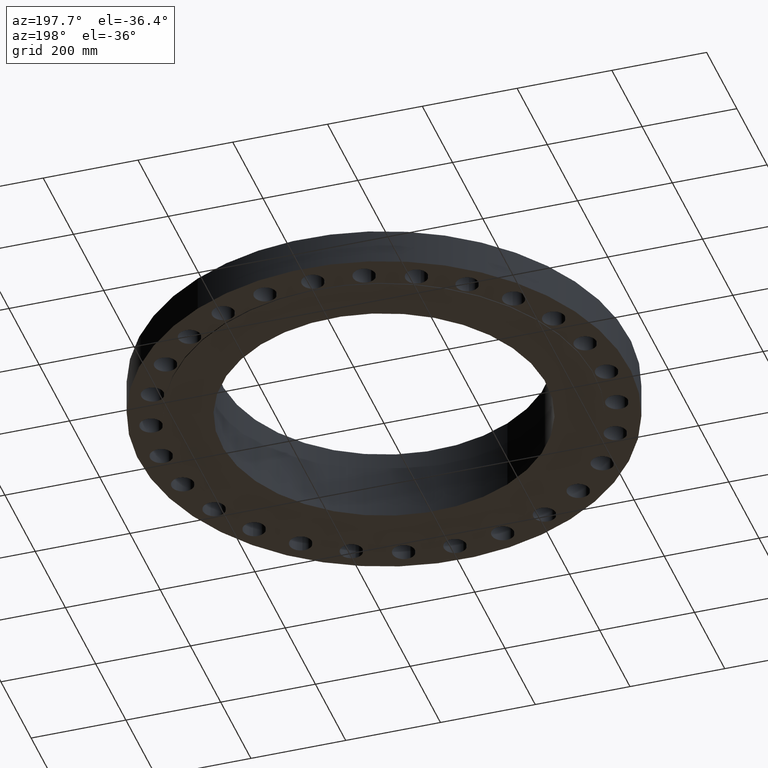
[diagram: clean part render]
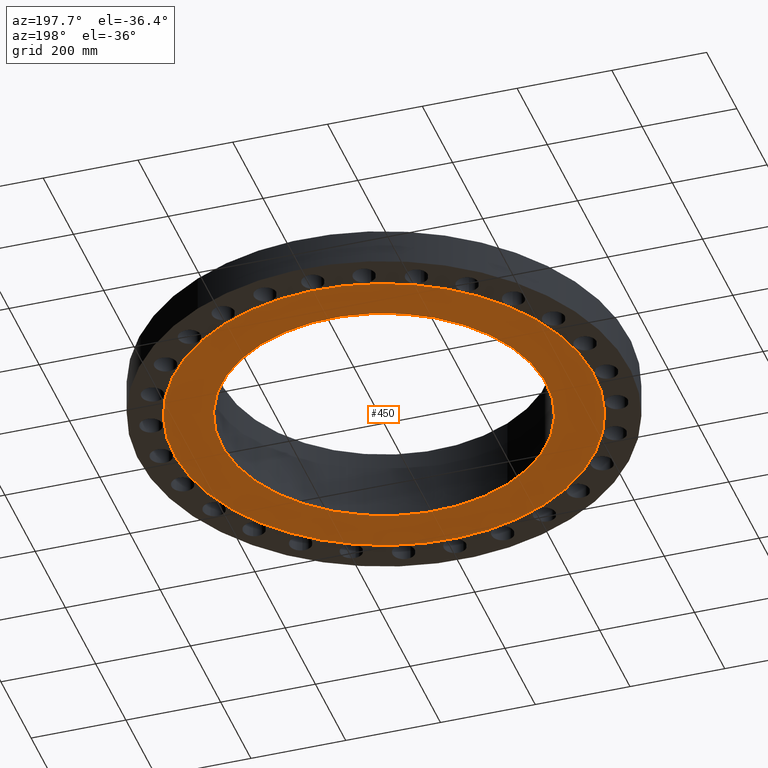
[diagram: same view with one face highlighted and labeled with its STEP entity id]
A machine part, auxiliary view. The second image highlights one B-rep face of the part: STEP entity #450.
In plain terms, the highlighted planar face has unit normal (0, 0, -1).
Its self-contained STEP definition (entity closure, byte-faithful):
#389=CARTESIAN_POINT('Vertex',(164.395017188,300.923060473,-1.58750000001)) ;
#392=CARTESIAN_POINT('Axis2P3D Location',(0.,0.,-1.58750000001)) ;
#396=CARTESIAN_POINT('Vertex',(-164.395017188,-300.923060473,-1.58750000001)) ;
#411=CARTESIAN_POINT('Axis2P3D Location',(0.,0.,-1.58750000001)) ;
#423=CARTESIAN_POINT('Axis2P3D Location',(0.,342.900000001,-1.58750000001)) ;
#428=CARTESIAN_POINT('Axis2P3D Location',(0.,0.,-1.58750000001)) ;
#432=CARTESIAN_POINT('Vertex',(-212.73932965,-389.41673085,-1.58750000001)) ;
#434=CARTESIAN_POINT('Vertex',(212.73932965,389.41673085,-1.58750000001)) ;
#437=CARTESIAN_POINT('Axis2P3D Location',(0.,0.,-1.58750000001)) ;
#393=DIRECTION('Axis2P3D Direction',(0.,0.,-1.)) ;
#412=DIRECTION('Axis2P3D Direction',(0.,0.,-1.)) ;
#424=DIRECTION('Axis2P3D Direction',(0.,0.,-1.)) ;
#425=DIRECTION('Axis2P3D XDirection',(1.,0.,0.)) ;
#429=DIRECTION('Axis2P3D Direction',(0.,0.,-1.)) ;
#438=DIRECTION('Axis2P3D Direction',(0.,0.,-1.)) ;
#394=AXIS2_PLACEMENT_3D('Circle Axis2P3D',#392,#393,$) ;
#413=AXIS2_PLACEMENT_3D('Circle Axis2P3D',#411,#412,$) ;
#426=AXIS2_PLACEMENT_3D('Plane Axis2P3D',#423,#424,#425) ;
#430=AXIS2_PLACEMENT_3D('Circle Axis2P3D',#428,#429,$) ;
#439=AXIS2_PLACEMENT_3D('Circle Axis2P3D',#437,#438,$) ;
#443=ORIENTED_EDGE('',*,*,#436,.T.) ;
#444=ORIENTED_EDGE('',*,*,#441,.T.) ;
#447=ORIENTED_EDGE('',*,*,#398,.F.) ;
#448=ORIENTED_EDGE('',*,*,#415,.F.) ;
#449=FACE_BOUND('',#446,.T.) ;
#450=ADVANCED_FACE('PartBody',(#445,#449),#427,.T.) ;
#395=CIRCLE('generated circle',#394,342.900000001) ;
#414=CIRCLE('generated circle',#413,342.900000001) ;
#431=CIRCLE('generated circle',#430,443.738000002) ;
#440=CIRCLE('generated circle',#439,443.738000002) ;
#398=EDGE_CURVE('',#390,#397,#395,.T.) ;
#415=EDGE_CURVE('',#397,#390,#414,.T.) ;
#436=EDGE_CURVE('',#433,#435,#431,.T.) ;
#441=EDGE_CURVE('',#435,#433,#440,.T.) ;
#442=EDGE_LOOP('',(#443,#444)) ;
#446=EDGE_LOOP('',(#447,#448)) ;
#445=FACE_OUTER_BOUND('',#442,.T.) ;
#427=PLANE('',#426) ;
#390=VERTEX_POINT('',#389) ;
#397=VERTEX_POINT('',#396) ;
#433=VERTEX_POINT('',#432) ;
#435=VERTEX_POINT('',#434) ;